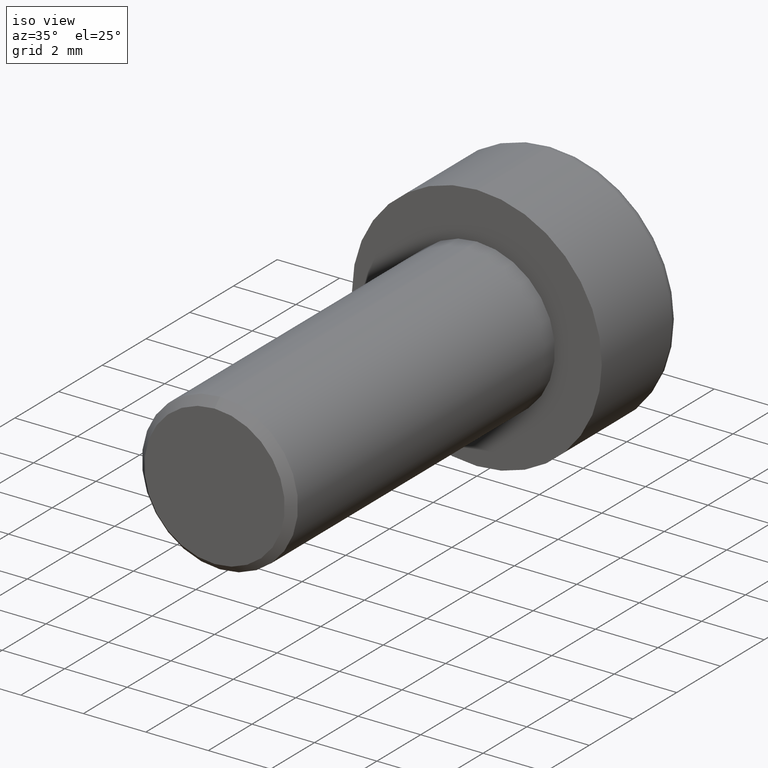
[diagram: clean part render]
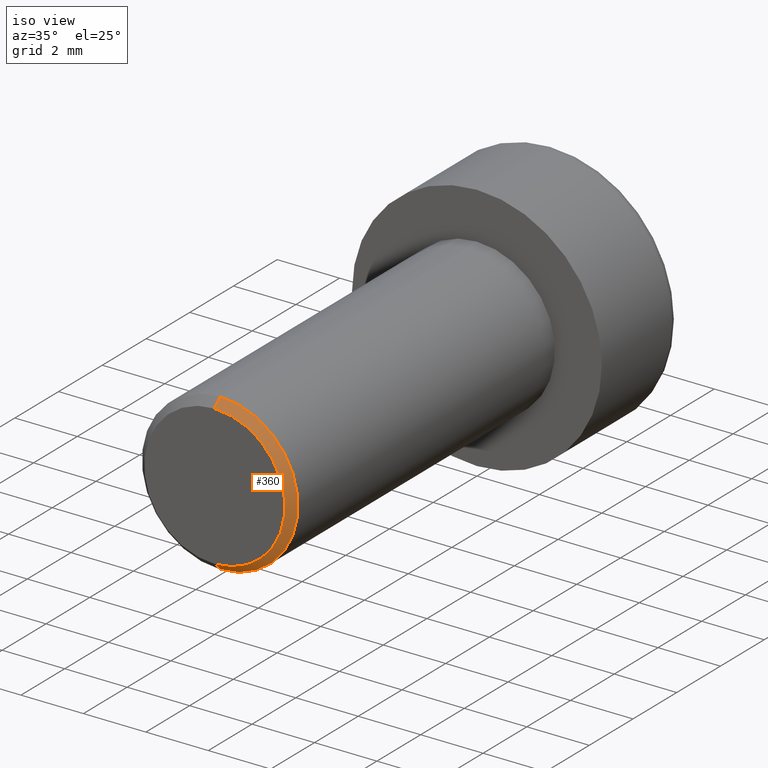
[diagram: same view with one face highlighted and labeled with its STEP entity id]
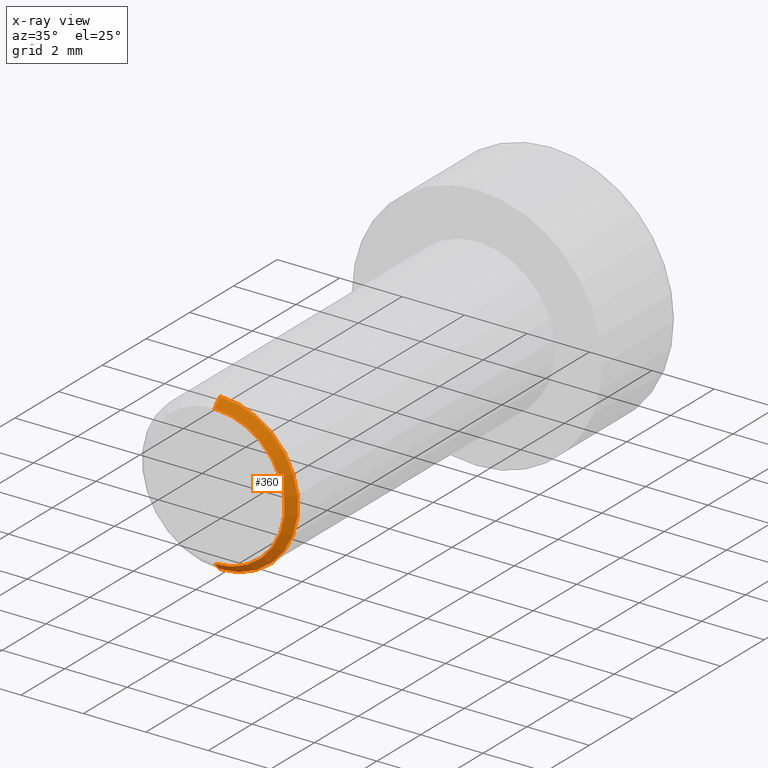
[diagram: x-ray of the same camera — body ghosted, the highlighted face saturated]
A machine part, iso view. The second image highlights one B-rep face of the part: STEP entity #360.
The next image is the same camera in x-ray: the body ghosted, the highlighted face saturated — about 0% of this face is hidden behind the body in this view.
In plain terms, the highlighted conical surface has half-angle 45 deg.
Its self-contained STEP definition (entity closure, byte-faithful):
#85 = CARTESIAN_POINT ( 'NONE',  ( 3.061616997868383100E-016, -11.74999999999999600, -2.500000000000000000 ) ) ;
#133 = CARTESIAN_POINT ( 'NONE',  ( 0.0000000000000000000, -12.00000000000000000, 0.0000000000000000000 ) ) ;
#135 = DIRECTION ( 'NONE',  ( 0.0000000000000000000, 1.000000000000000000, 0.0000000000000000000 ) ) ;
#140 = DIRECTION ( 'NONE',  ( 0.0000000000000000000, 0.0000000000000000000, 1.000000000000000000 ) ) ;
#154 = CARTESIAN_POINT ( 'NONE',  ( 0.0000000000000000000, -12.00000000000000000, 2.249999999999998700 ) ) ;
#172 = DIRECTION ( 'NONE',  ( 0.0000000000000000000, 0.0000000000000000000, -1.000000000000000000 ) ) ;
#175 = DIRECTION ( 'NONE',  ( 0.0000000000000000000, 1.000000000000000000, 0.0000000000000000000 ) ) ;
#176 = CARTESIAN_POINT ( 'NONE',  ( 0.0000000000000000000, -11.74999999999999600, 0.0000000000000000000 ) ) ;
#179 = DIRECTION ( 'NONE',  ( 0.0000000000000000000, 0.0000000000000000000, -1.000000000000000000 ) ) ;
#180 = DIRECTION ( 'NONE',  ( 0.0000000000000000000, -1.000000000000000000, 0.0000000000000000000 ) ) ;
#181 = CARTESIAN_POINT ( 'NONE',  ( 0.0000000000000000000, -12.00000000000000000, 0.0000000000000000000 ) ) ;
#186 = DIRECTION ( 'NONE',  ( 0.0000000000000000000, 0.7071067811865505700, 0.7071067811865444600 ) ) ;
#188 = CARTESIAN_POINT ( 'NONE',  ( 2.908536147974963200E-016, -12.00000000000000000, -2.249999999999998700 ) ) ;
#189 = CARTESIAN_POINT ( 'NONE',  ( 0.0000000000000000000, -12.00000000000000000, 2.249999999999998700 ) ) ;
#190 = DIRECTION ( 'NONE',  ( 8.659560562354895900E-017, 0.7071067811865505700, -0.7071067811865444600 ) ) ;
#191 = CARTESIAN_POINT ( 'NONE',  ( 2.755455298081542800E-016, -12.00000000000000000, -2.249999999999998700 ) ) ;
#215 = CONICAL_SURFACE ( 'NONE', #456, 2.249999999999998700, 0.7853981633974439500 ) ;
#283 = CIRCLE ( 'NONE', #468, 2.249999999999998700 ) ;
#286 = LINE ( 'NONE', #189, #564 ) ;
#288 = CIRCLE ( 'NONE', #469, 2.500000000000000000 ) ;
#314 = CARTESIAN_POINT ( 'NONE',  ( 0.0000000000000000000, -11.74999999999999600, 2.500000000000000000 ) ) ;
#322 = VERTEX_POINT ( 'NONE', #314 ) ;
#327 = ORIENTED_EDGE ( 'NONE', *, *, #429, .F. ) ;
#329 = VERTEX_POINT ( 'NONE', #154 ) ;
#330 = VERTEX_POINT ( 'NONE', #85 ) ;
#344 = VERTEX_POINT ( 'NONE', #188 ) ;
#360 = ADVANCED_FACE ( 'NONE', ( #550 ), #215, .T. ) ;
#392 = ORIENTED_EDGE ( 'NONE', *, *, #428, .F. ) ;
#393 = ORIENTED_EDGE ( 'NONE', *, *, #427, .F. ) ;
#394 = ORIENTED_EDGE ( 'NONE', *, *, #426, .T. ) ;
#411 = EDGE_LOOP ( 'NONE', ( #393, #394, #392, #327 ) ) ;
#426 = EDGE_CURVE ( 'NONE', #344, #330, #562, .T. ) ;
#427 = EDGE_CURVE ( 'NONE', #344, #329, #283, .T. ) ;
#428 = EDGE_CURVE ( 'NONE', #322, #330, #288, .T. ) ;
#429 = EDGE_CURVE ( 'NONE', #329, #322, #286, .T. ) ;
#456 = AXIS2_PLACEMENT_3D ( 'NONE', #133, #135, #140 ) ;
#468 = AXIS2_PLACEMENT_3D ( 'NONE', #181, #180, #179 ) ;
#469 = AXIS2_PLACEMENT_3D ( 'NONE', #176, #175, #172 ) ;
#550 = FACE_OUTER_BOUND ( 'NONE', #411, .T. ) ;
#560 = VECTOR ( 'NONE', #190, 1000.000000000000000 ) ;
#562 = LINE ( 'NONE', #191, #560 ) ;
#564 = VECTOR ( 'NONE', #186, 1000.000000000000000 ) ;